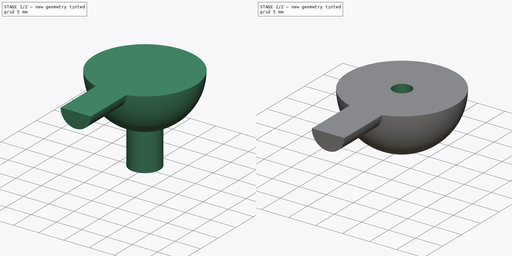
[diagram: build sequence overview — one tinted view per stage of 2, left to right]
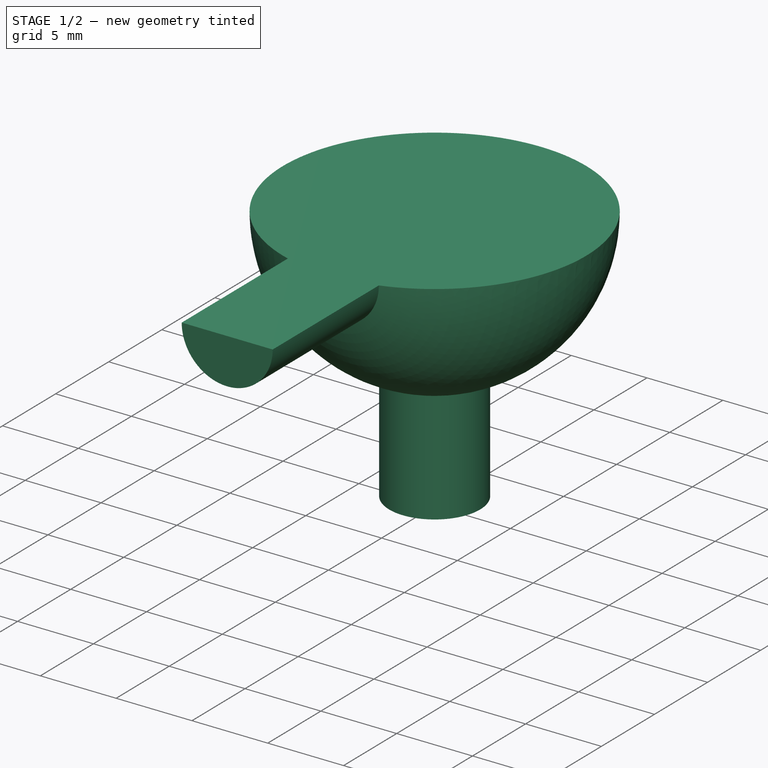
[diagram: stage 1 of 2 — iso view after this stage's code; geometry added in this stage tinted green]
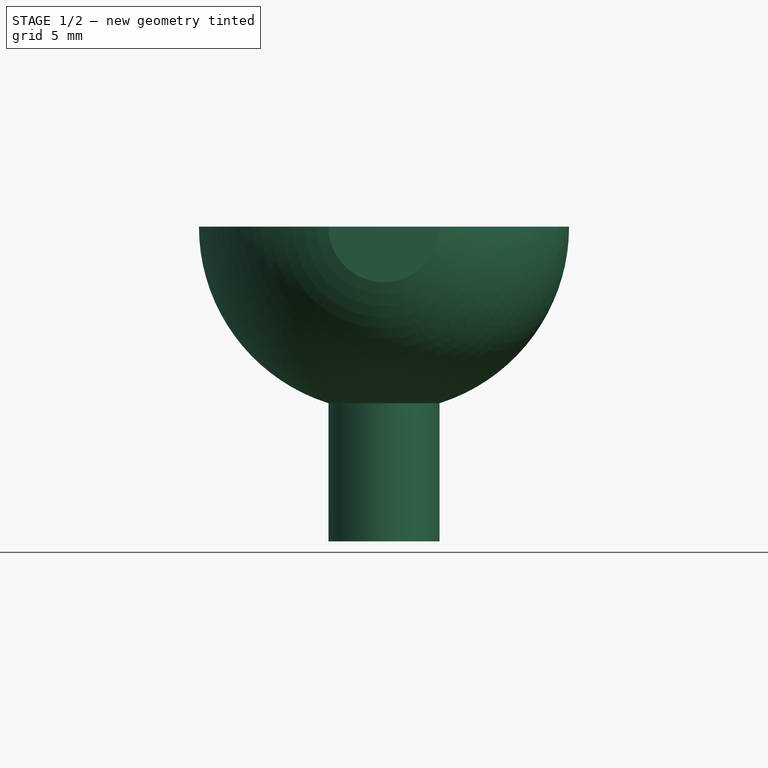
[diagram: stage 1 of 2 — front view after this stage's code; geometry added in this stage tinted green]
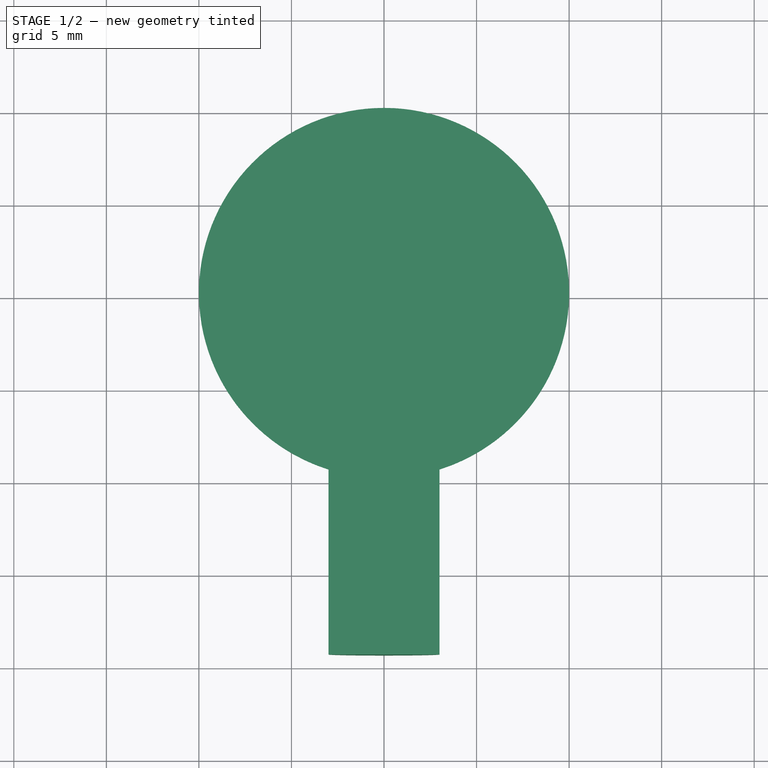
[diagram: stage 1 of 2 — top view after this stage's code; geometry added in this stage tinted green]
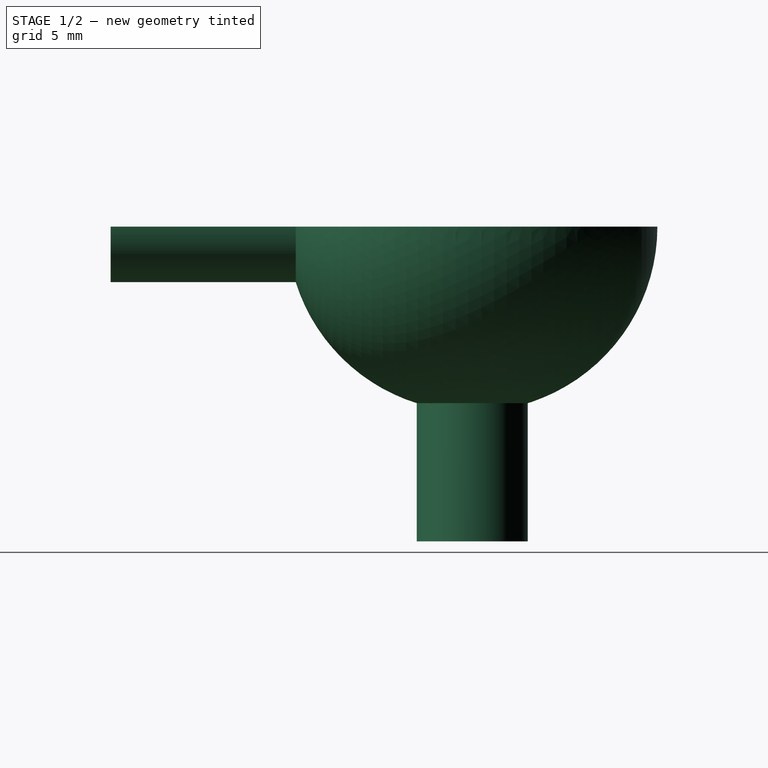
[diagram: stage 1 of 2 — right view after this stage's code; geometry added in this stage tinted green]
FCSTD DOCUMENT
Label: BallRound
objects: Sketcher::SketchObject×3, PartDesign::Pad×1, PartDesign::Revolution×1, Part::Cut×1, PartDesign::Pocket×1
note: 8 computed .brp shape members not serialized (recipe doc carries the construction recipe); baked Part::Feature solids carry a one-line shape summary decoded from their .brp

FEATURE [Sketcher::SketchObject] Sketch001
  sketch-geometry (1):
    g0: Circle CenterX=0 CenterY=20 CenterZ=0 NormalX=0 NormalY=0 NormalZ=1 Radius=3
  constraints (3):
    c: Radius(g0) = 3
    c: DistanceX(g0) = 0
    c: DistanceY(g0) = 20
FEATURE [PartDesign::Pad] Pad
  Length = 10
  MirroredExtent = false
  Placement = pos=(0,0,-17) rot=(0,0,1;0rad)
  Sketch = -> Sketch001
FEATURE [Sketcher::SketchObject] Sketch
  sketch-geometry (4):
    g0: LineSegment StartX=0 StartY=30 StartZ=0 EndX=0 EndY=0.460608 EndZ=0
    g1: LineSegment StartX=0 StartY=0.460608 StartZ=0 EndX=3 EndY=0.460608 EndZ=0
    g2: LineSegment StartX=3 StartY=0.460608 StartZ=0 EndX=3 EndY=10.4606 EndZ=0
    g3: ArcOfCircle CenterX=0 CenterY=20 CenterZ=0 NormalX=0 NormalY=0 NormalZ=1 Radius=10 StartAngle=5.01708 EndAngle=7.85398
  constraints (13):
    c: Vertical(g0)
    c: Coincident(g0,g1)
    c: Horizontal(g1)
    c: Coincident(g1,g2)
    c: Vertical(g2)
    c: PointOnObject(g3,g0)
    c: Coincident(g3,g0)
    c: Coincident(g3,g2)
    c: Radius(g3) = 10
    c: DistanceY(g2) = 10
    c: DistanceX(g3) = 0
    c: DistanceY(g3) = 20
    c: DistanceX(g1) = 3
FEATURE [PartDesign::Revolution] Revolution
  Angle = 180
  Axis = (0,1,0)
  Base = (0,0,0)
  Sketch = -> Sketch
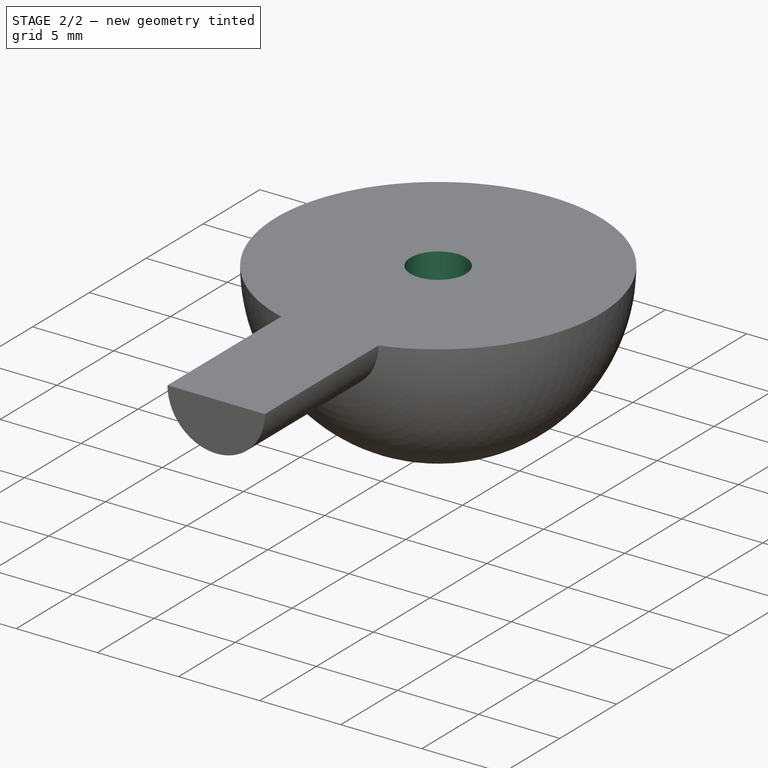
[diagram: stage 2 of 2 — iso view after this stage's code; geometry added in this stage tinted green]
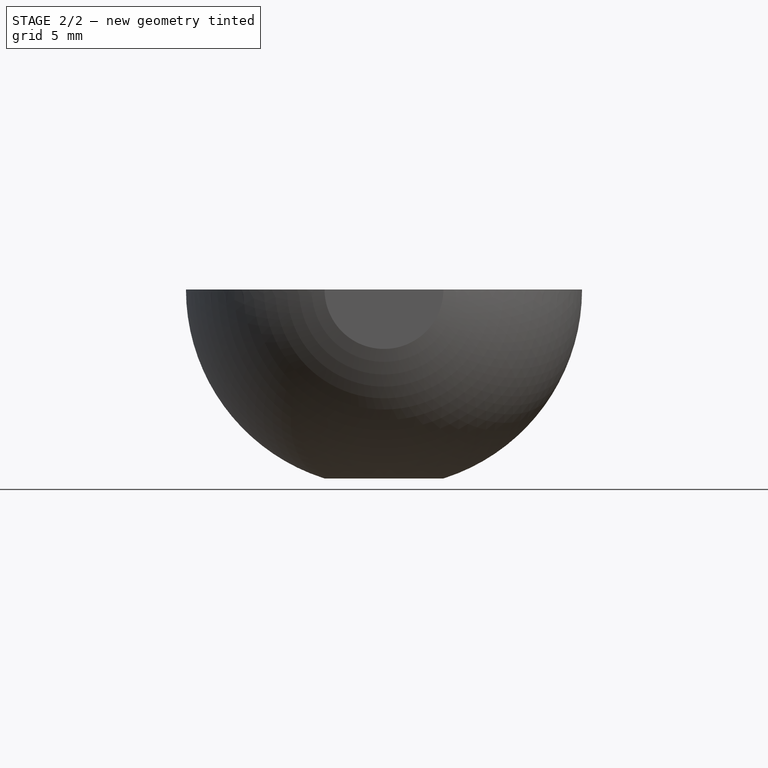
[diagram: stage 2 of 2 — front view after this stage's code; geometry added in this stage tinted green]
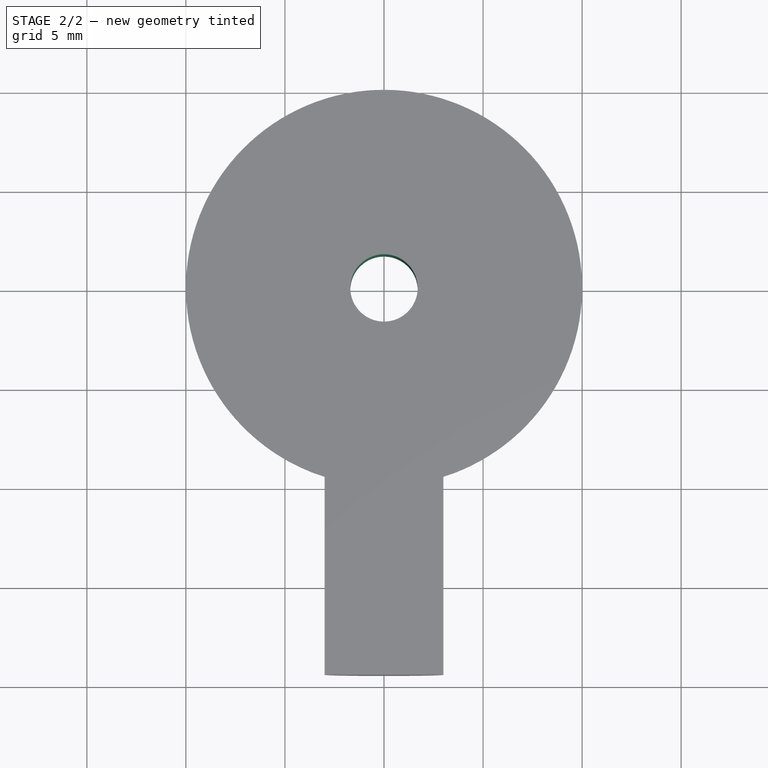
[diagram: stage 2 of 2 — top view after this stage's code; geometry added in this stage tinted green]
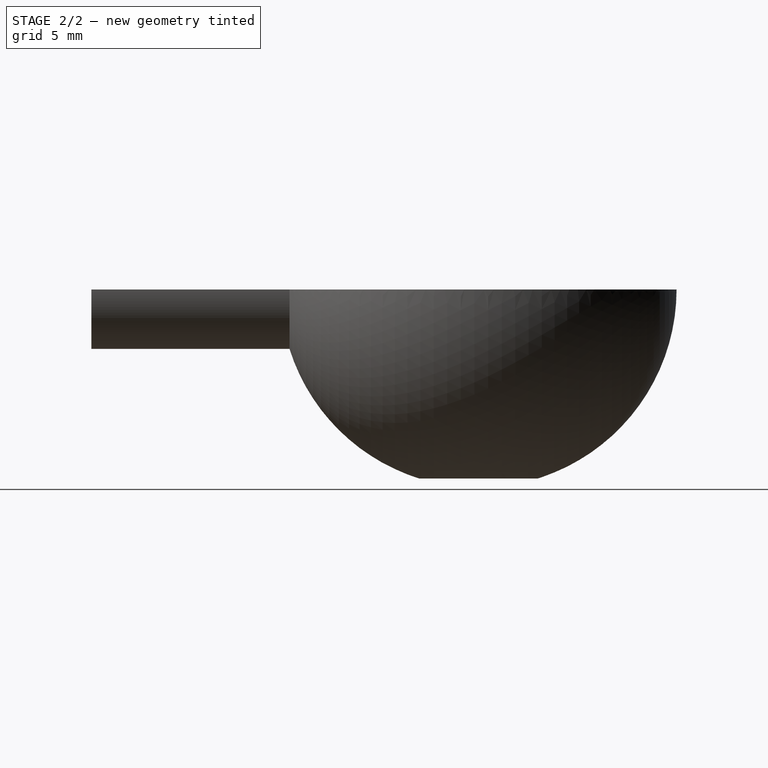
[diagram: stage 2 of 2 — right view after this stage's code; geometry added in this stage tinted green]
FEATURE [Part::Cut] Cut
  Base = -> Revolution
  Tool = -> Pad
FEATURE [Sketcher::SketchObject] Sketch002
  Placement = pos=(0,0,-7) rot=(1,0,0;3.14159rad)
  Support = -> Cut [Face12]
  sketch-geometry (1):
    g0: Circle CenterX=0 CenterY=-19.9993 CenterZ=0 NormalX=0 NormalY=0 NormalZ=1 Radius=1.7
  constraints (3):
    c: Radius(g0) = 1.7
    c: DistanceX(g0) = 0
    c: DistanceY(g0) = -19.9993
FEATURE [PartDesign::Pocket] Pocket
  Length = 7
  Sketch = -> Sketch002
  Type = 0
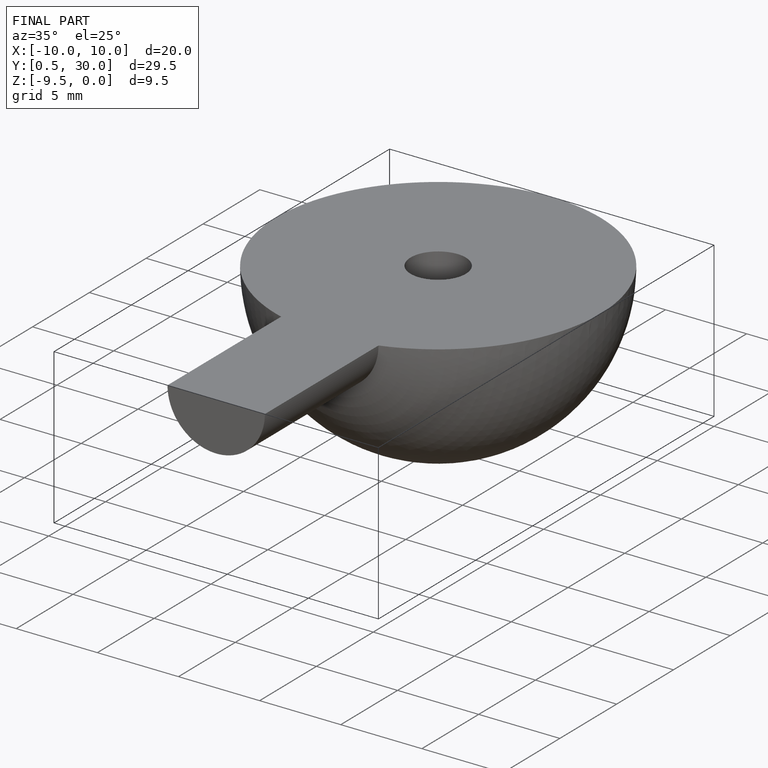
[diagram: finished part — iso view with bounding-box wireframe]
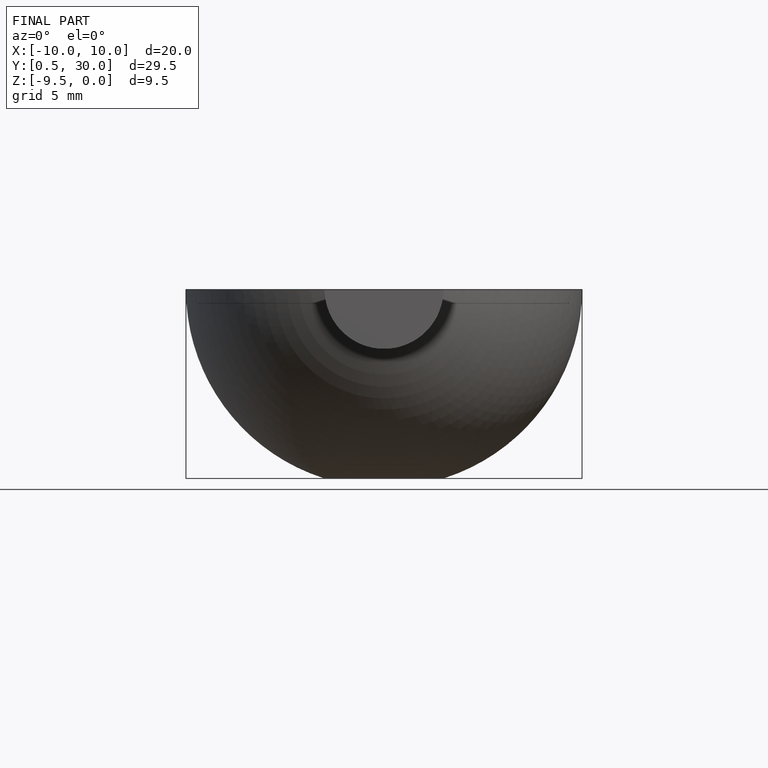
[diagram: finished part — front view with bounding-box wireframe]
